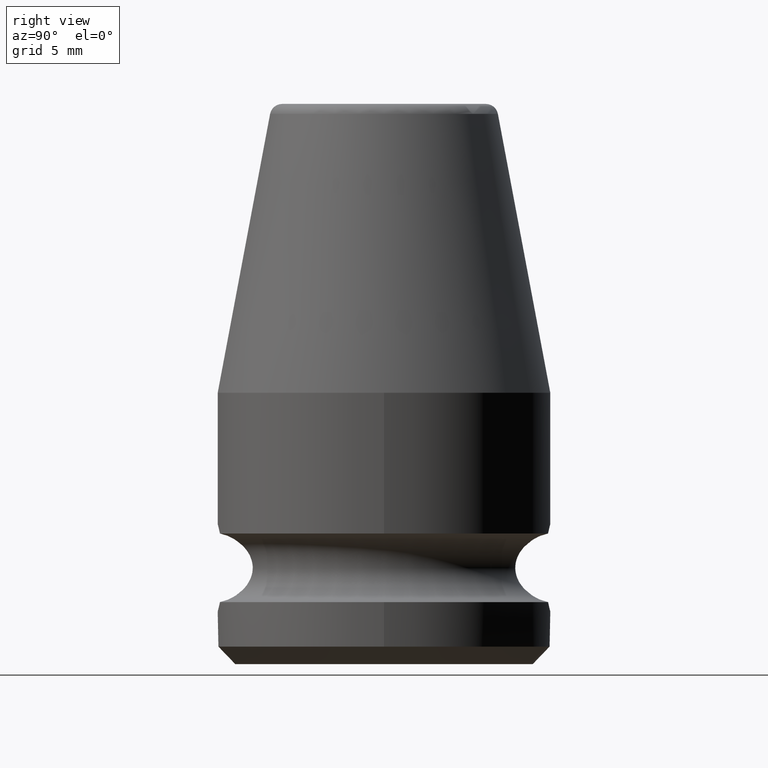
[diagram: clean part render]
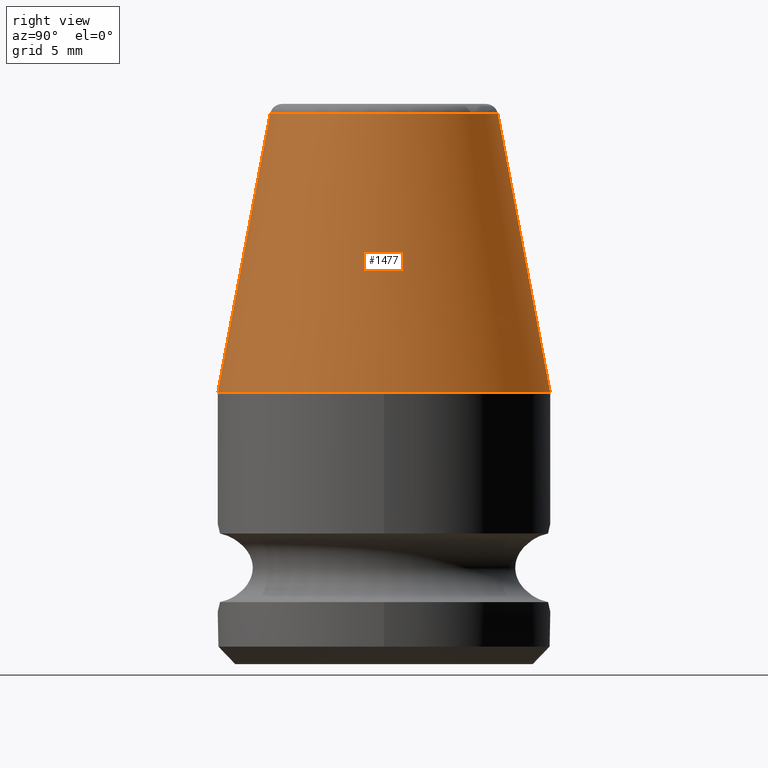
[diagram: same view with one face highlighted and labeled with its STEP entity id]
A machine part, right view. The second image highlights one B-rep face of the part: STEP entity #1477.
In plain terms, the highlighted conical surface has half-angle 10.641 deg.
Its self-contained STEP definition (entity closure, byte-faithful):
#329=CARTESIAN_POINT('',(0.E0,0.E0,3.142925370775E1));
#330=DIRECTION('',(0.E0,0.E0,1.E0));
#331=DIRECTION('',(0.E0,-1.E0,0.E0));
#332=AXIS2_PLACEMENT_3D('',#329,#330,#331);
#334=DIRECTION('',(3.911891375288E-14,1.846481539326E-1,-9.828046902866E-1));
#335=VECTOR('',#334,1.620795450529E1);
#336=CARTESIAN_POINT('',(-6.338436719933E-13,6.507231121574E0,
3.142925370775E1));
#337=LINE('',#336,#335);
#338=DIRECTION('',(-3.913327930339E-14,-1.846481539326E-1,-9.828046902866E-1));
#339=VECTOR('',#338,1.620795450529E1);
#340=CARTESIAN_POINT('',(6.322824208649E-13,-6.507231121574E0,
3.142925370775E1));
#341=LINE('',#340,#339);
#382=CARTESIAN_POINT('',(0.E0,0.E0,1.55E1));
#383=DIRECTION('',(0.E0,0.E0,1.E0));
#384=DIRECTION('',(0.E0,-1.E0,0.E0));
#385=AXIS2_PLACEMENT_3D('',#382,#383,#384);
#500=CARTESIAN_POINT('',(0.E0,0.E0,1.55E1));
#501=DIRECTION('',(0.E0,0.E0,1.E0));
#502=DIRECTION('',(1.E0,0.E0,0.E0));
#503=AXIS2_PLACEMENT_3D('',#500,#501,#502);
#1069=CARTESIAN_POINT('',(0.E0,9.5E0,1.55E1));
#1071=VERTEX_POINT('',#1069);
#1073=CARTESIAN_POINT('',(0.E0,-9.5E0,1.55E1));
#1074=VERTEX_POINT('',#1073);
#1075=CARTESIAN_POINT('',(9.5E0,0.E0,1.55E1));
#1076=VERTEX_POINT('',#1075);
#1081=CARTESIAN_POINT('',(0.E0,6.507231121574E0,3.142925370775E1));
#1082=CARTESIAN_POINT('',(0.E0,-6.507231121574E0,3.142925370775E1));
#1083=VERTEX_POINT('',#1081);
#1084=VERTEX_POINT('',#1082);
#1461=CARTESIAN_POINT('',(0.E0,0.E0,2.346462685388E1));
#1462=DIRECTION('',(0.E0,0.E0,-1.E0));
#1463=DIRECTION('',(0.E0,-1.E0,0.E0));
#1464=AXIS2_PLACEMENT_3D('',#1461,#1462,#1463);
#1465=CONICAL_SURFACE('',#1464,8.003615560787E0,1.064061970241E1);
#1466=ORIENTED_EDGE('',*,*,#1455,.T.);
#1468=ORIENTED_EDGE('',*,*,#1467,.T.);
#1470=ORIENTED_EDGE('',*,*,#1469,.F.);
#1472=ORIENTED_EDGE('',*,*,#1471,.F.);
#1474=ORIENTED_EDGE('',*,*,#1473,.F.);
#1475=EDGE_LOOP('',(#1466,#1468,#1470,#1472,#1474));
#1476=FACE_OUTER_BOUND('',#1475,.F.);
#1477=ADVANCED_FACE('',(#1476),#1465,.T.);
#333=CIRCLE('',#332,6.507231121574E0);
#386=CIRCLE('',#385,9.5E0);
#504=CIRCLE('',#503,9.5E0);
#1455=EDGE_CURVE('',#1084,#1083,#333,.T.);
#1467=EDGE_CURVE('',#1083,#1071,#337,.T.);
#1469=EDGE_CURVE('',#1076,#1071,#504,.T.);
#1471=EDGE_CURVE('',#1074,#1076,#386,.T.);
#1473=EDGE_CURVE('',#1084,#1074,#341,.T.);